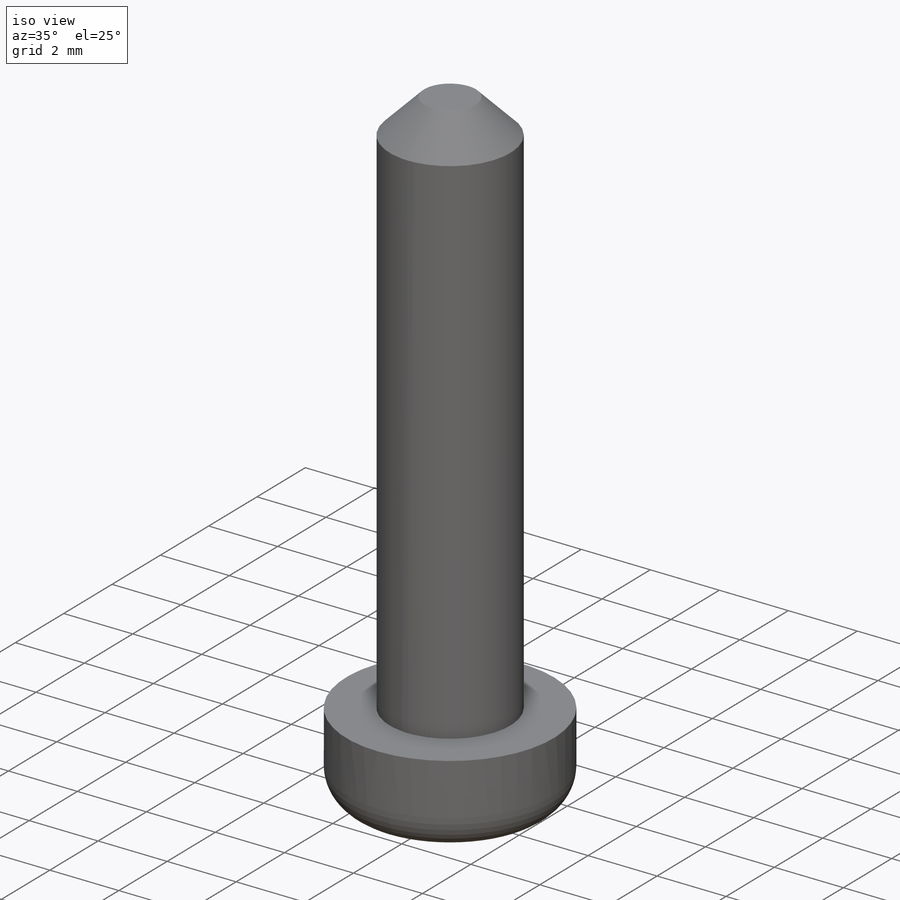
[diagram: iso view]
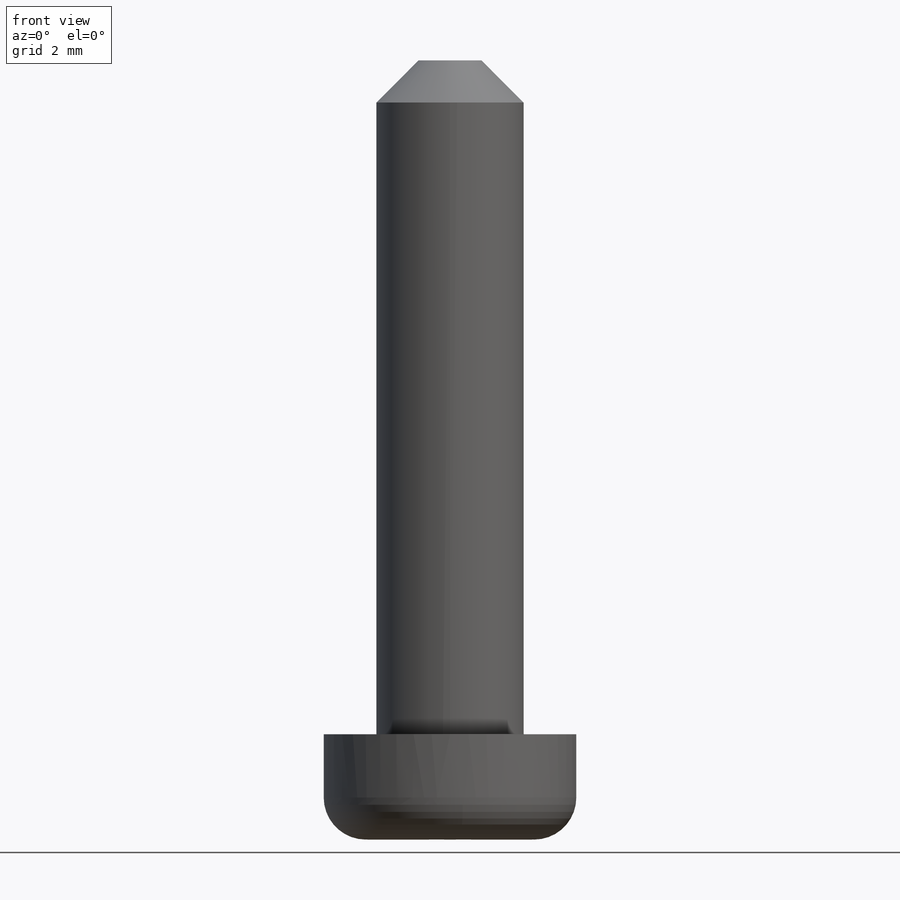
[diagram: front view]
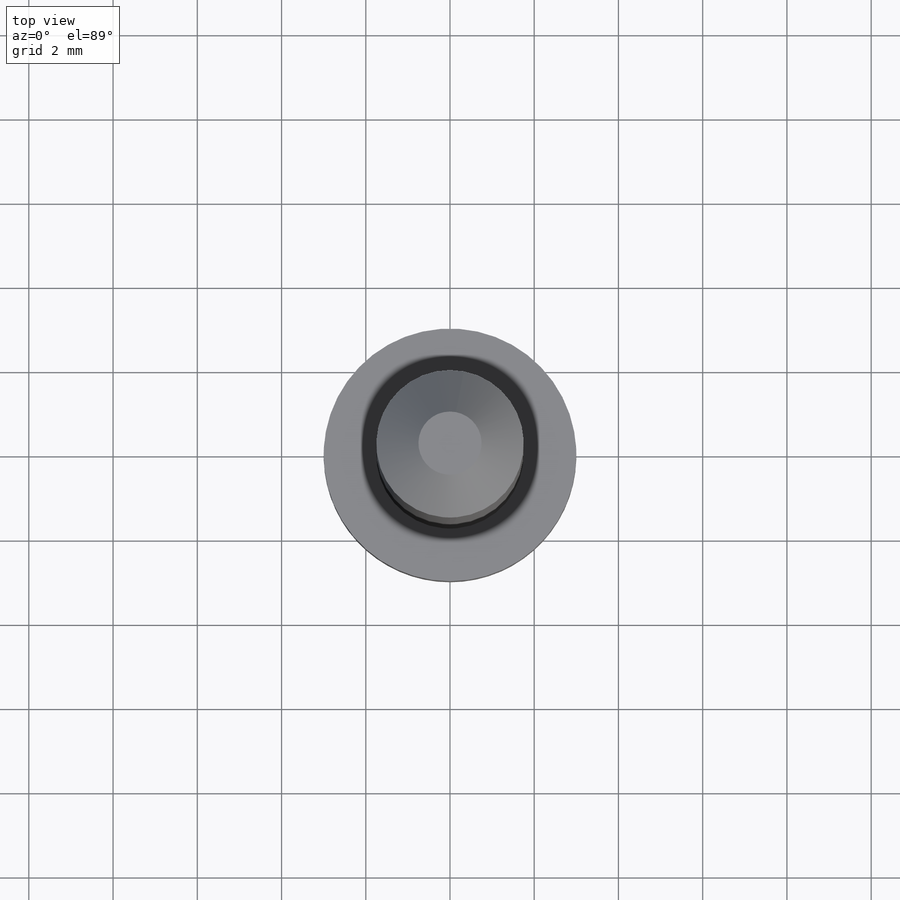
[diagram: top view]
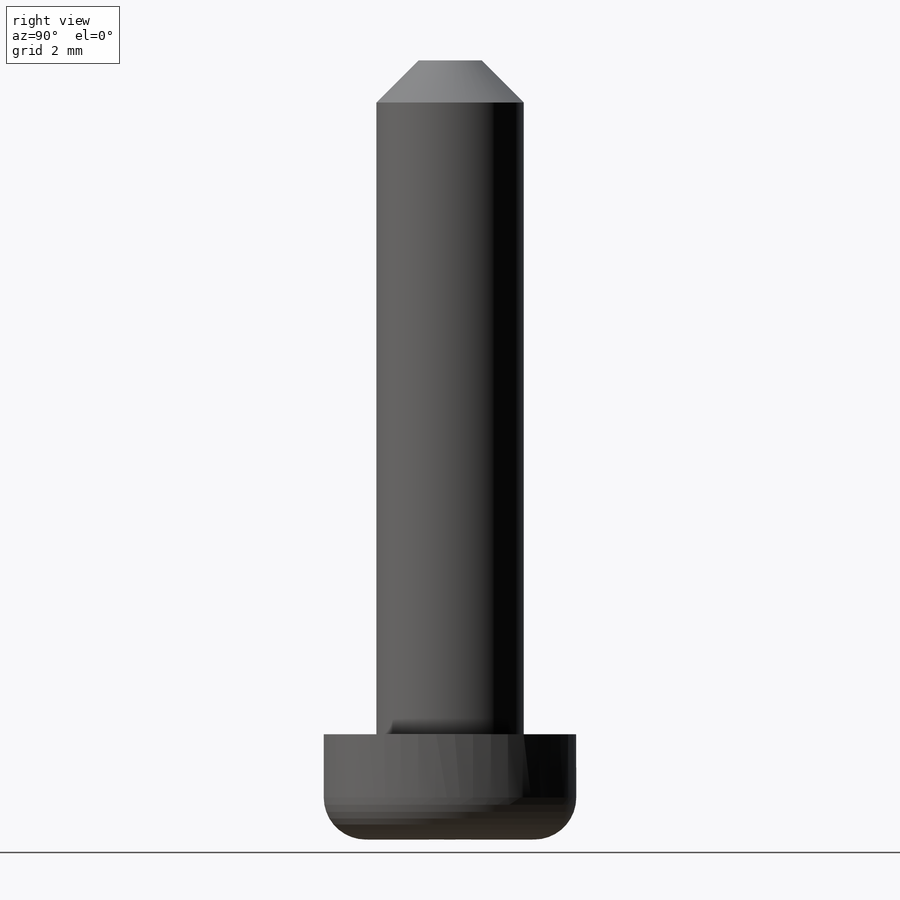
[diagram: right view]
SOLIDWORKS PART (.sldprt)
format: sldprt  version: not decoded by parser v0  size: 236,544 bytes
history: native  units: mm
features: plane x3, sketch x3, extrude x2, material x1, cut_extrude x1, fillet x1, chamfer x1 (+9 scaffold rows collapsed)
feature tree (21):
  scaffold x9  (default folders/planes/origin — collapsed)
  material  "Material <nicht festgelegt>"
  plane  "Vorne"
  plane  "Oben"
  plane  "Rechts"
  sketch  "Skizze1"  dims[D1=3.5mm]
  extrude  "Aufsatz-Linear austragen1"  Depth=16mm
  sketch  "Skizze2"  dims[D1=6.0mm]
  extrude  "Aufsatz-Linear austragen2"  Depth=2.5mm
  sketch  "Skizze3"  dims[D1=1.0mm D2=4.0mm D3=2.0mm D4=2.0mm D5=0.5mm D6=0.5mm]
  cut_extrude  "Schnitt-Linear austragen1"  Depth=1.5mm
  fillet  "Verrundung1"  Radius=1mm
  chamfer  "Fase1"  Distance=1mm Angle=45deg
decode coverage: 8 of 8 modeling features carry decoded parameters
note: suppression state not decoded; provenance and decode notes live in map.json
